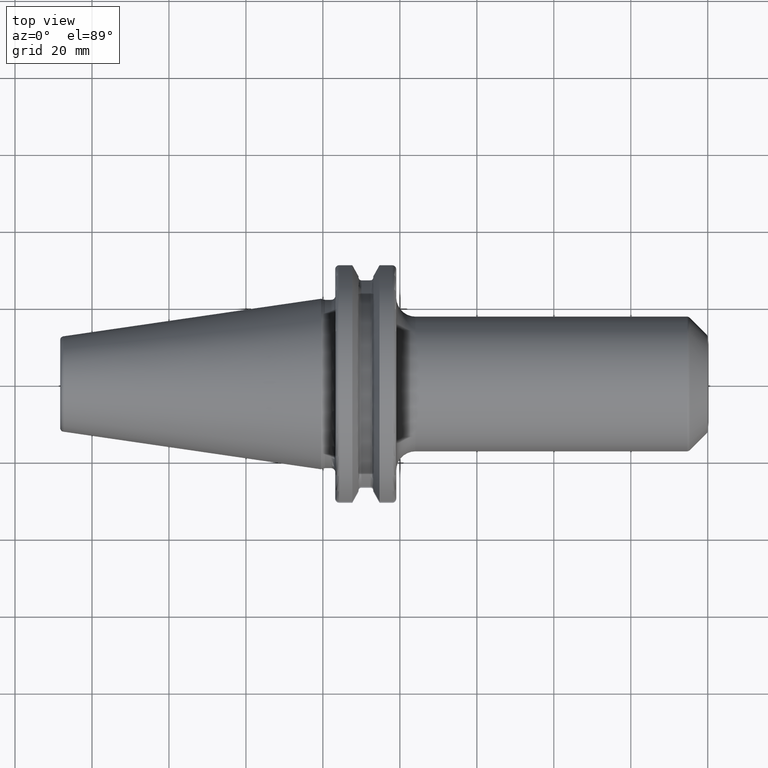
[diagram: clean part render]
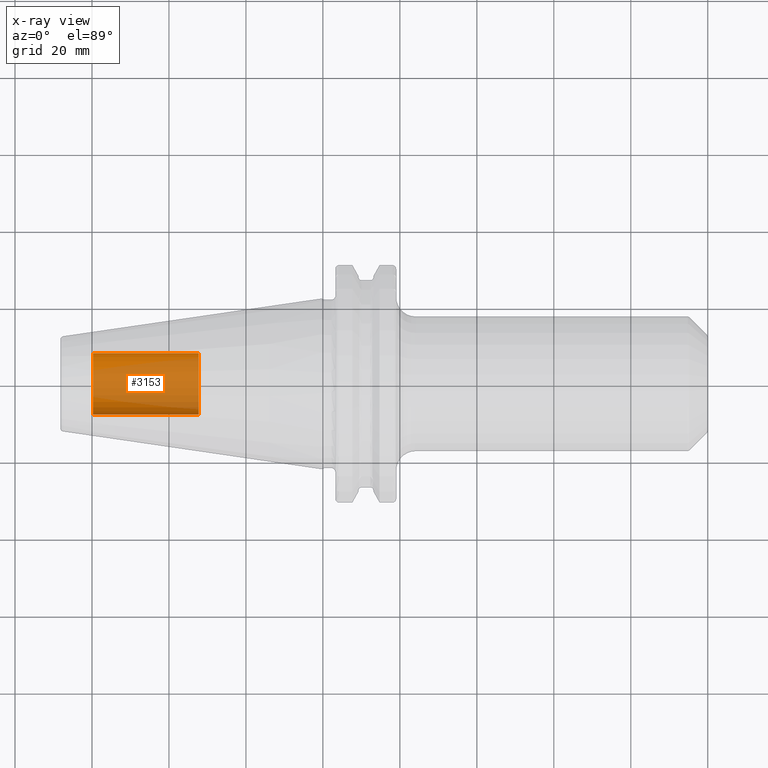
[diagram: x-ray — body ghosted, one internal face saturated and labeled with its STEP entity id]
A machine part, top view, then the same camera in x-ray: the body is ghosted and one INTERNAL B-rep face — a face not visible from any outside direction — is saturated and labeled: STEP entity #3153.
In plain terms, the highlighted cylindrical surface (edge-blend (fillet) strip) has radius 8.0028 mm, axis along (1, 0, 0).
Its self-contained STEP definition (entity closure, byte-faithful):
#3088=CARTESIAN_POINT('',(-5.98E1,0.E0,0.E0));
#3089=DIRECTION('',(-1.E0,0.E0,0.E0));
#3090=DIRECTION('',(0.E0,1.E0,0.E0));
#3091=AXIS2_PLACEMENT_3D('',#3088,#3089,#3090);
#3093=DIRECTION('',(1.E0,0.E0,0.E0));
#3094=VECTOR('',#3093,2.755E1);
#3095=CARTESIAN_POINT('',(-5.98E1,-8.00275E0,0.E0));
#3096=LINE('',#3095,#3094);
#3102=DIRECTION('',(1.E0,0.E0,0.E0));
#3103=VECTOR('',#3102,2.755E1);
#3104=CARTESIAN_POINT('',(-5.98E1,8.00275E0,0.E0));
#3105=LINE('',#3104,#3103);
#3111=CARTESIAN_POINT('',(-3.225E1,0.E0,0.E0));
#3112=DIRECTION('',(1.E0,0.E0,0.E0));
#3113=DIRECTION('',(0.E0,-1.E0,0.E0));
#3114=AXIS2_PLACEMENT_3D('',#3111,#3112,#3113);
#3126=CARTESIAN_POINT('',(-5.98E1,8.00275E0,0.E0));
#3127=CARTESIAN_POINT('',(-5.98E1,-8.00275E0,0.E0));
#3128=VERTEX_POINT('',#3126);
#3129=VERTEX_POINT('',#3127);
#3130=CARTESIAN_POINT('',(-3.225E1,8.00275E0,0.E0));
#3131=CARTESIAN_POINT('',(-3.225E1,-8.00275E0,0.E0));
#3132=VERTEX_POINT('',#3130);
#3133=VERTEX_POINT('',#3131);
#3138=CARTESIAN_POINT('',(-5.98E1,0.E0,0.E0));
#3139=DIRECTION('',(1.E0,0.E0,0.E0));
#3140=DIRECTION('',(0.E0,1.E0,0.E0));
#3141=AXIS2_PLACEMENT_3D('',#3138,#3139,#3140);
#3142=CYLINDRICAL_SURFACE('',#3141,8.00275E0);
#3144=ORIENTED_EDGE('',*,*,#3143,.T.);
#3146=ORIENTED_EDGE('',*,*,#3145,.T.);
#3148=ORIENTED_EDGE('',*,*,#3147,.T.);
#3150=ORIENTED_EDGE('',*,*,#3149,.F.);
#3151=EDGE_LOOP('',(#3144,#3146,#3148,#3150));
#3152=FACE_OUTER_BOUND('',#3151,.F.);
#3153=ADVANCED_FACE('',(#3152),#3142,.T.);
#3092=CIRCLE('',#3091,8.00275E0);
#3115=CIRCLE('',#3114,8.00275E0);
#3143=EDGE_CURVE('',#3128,#3129,#3092,.T.);
#3145=EDGE_CURVE('',#3129,#3133,#3096,.T.);
#3147=EDGE_CURVE('',#3133,#3132,#3115,.T.);
#3149=EDGE_CURVE('',#3128,#3132,#3105,.T.);